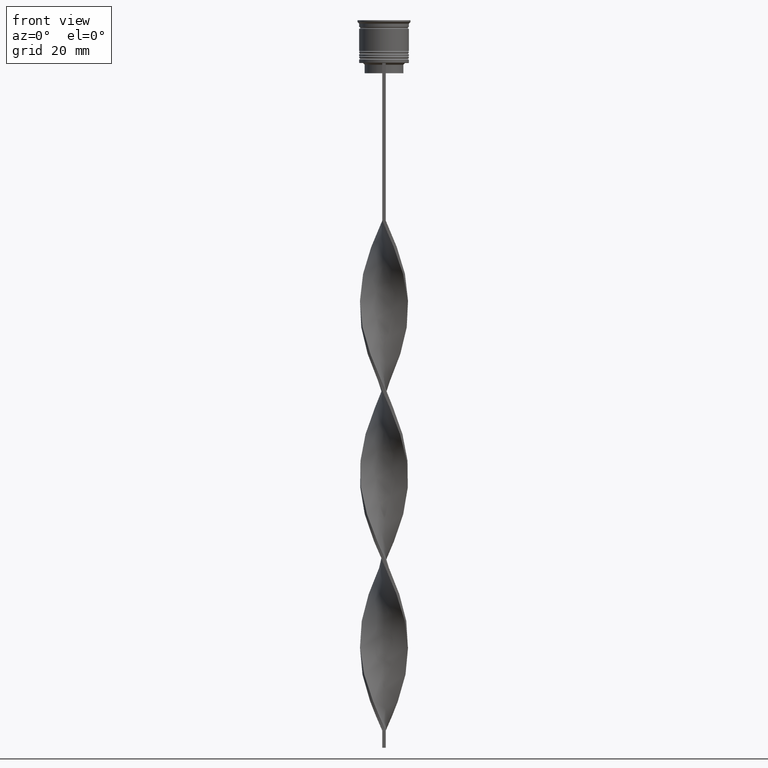
[diagram: clean part render]
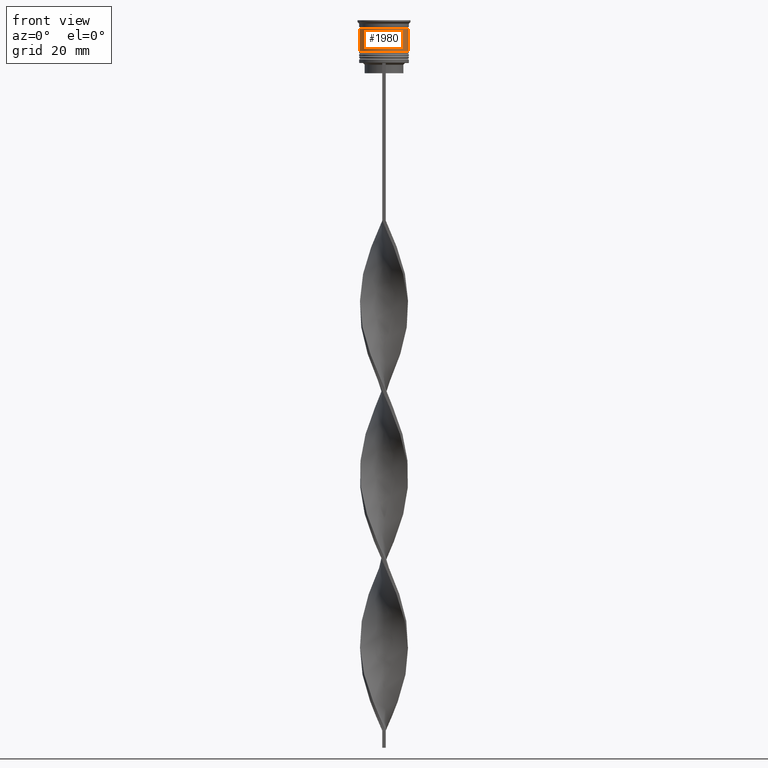
[diagram: same view with one face highlighted and labeled with its STEP entity id]
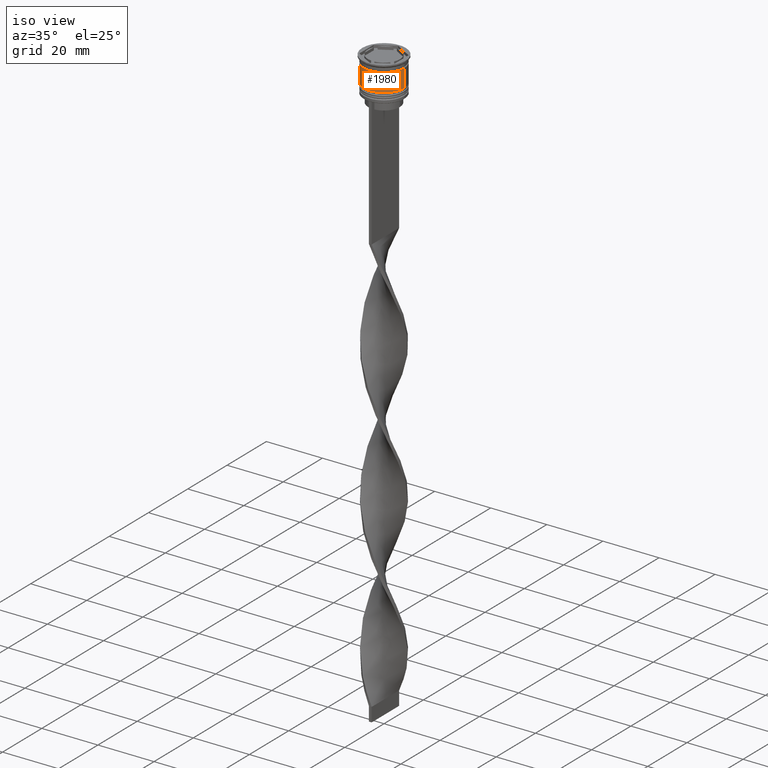
[diagram: same view with one face highlighted and labeled with its STEP entity id]
A machine part, front view. The second image highlights one B-rep face of the part: STEP entity #1980.
A second angle (iso view) of the same face is appended — the face is thin or edge-on in the first view.
In plain terms, the highlighted cylindrical surface (edge-blend (fillet) strip) has radius 7.25 mm, axis along (-0, -0, 1).
Its self-contained STEP definition (entity closure, byte-faithful):
#33 = CARTESIAN_POINT ( 'NONE',  ( 0.000000000000000000, 0.000000000000000000, 0.000000000000000000 ) ) ;
#38 = CARTESIAN_POINT ( 'NONE',  ( 7.249999999999997335, 0.000000000000000000, -2.500000000000000444 ) ) ;
#73 = CIRCLE ( 'NONE', #1728, 7.250000000000000888 ) ;
#140 = ORIENTED_EDGE ( 'NONE', *, *, #3059, .T. ) ;
#322 = DIRECTION ( 'NONE',  ( 1.000000000000000000, 0.000000000000000000, 0.000000000000000000 ) ) ;
#389 = ORIENTED_EDGE ( 'NONE', *, *, #2711, .T. ) ;
#723 = LINE ( 'NONE', #3067, #3071 ) ;
#832 = VERTEX_POINT ( 'NONE', #1933 ) ;
#984 = CARTESIAN_POINT ( 'NONE',  ( 7.249999999999999112, 0.000000000000000000, 0.000000000000000000 ) ) ;
#1032 = DIRECTION ( 'NONE',  ( -0.000000000000000000, -0.000000000000000000, 1.000000000000000000 ) ) ;
#1119 = DIRECTION ( 'NONE',  ( 1.000000000000000000, 0.000000000000000000, 0.000000000000000000 ) ) ;
#1253 = DIRECTION ( 'NONE',  ( -0.000000000000000000, -0.000000000000000000, 1.000000000000000000 ) ) ;
#1328 = LINE ( 'NONE', #984, #2709 ) ;
#1457 = CARTESIAN_POINT ( 'NONE',  ( -7.249999999999997335, 8.878689293818308102E-16, -2.500000000000000444 ) ) ;
#1499 = EDGE_LOOP ( 'NONE', ( #3107, #140, #389, #2991 ) ) ;
#1530 = EDGE_CURVE ( 'NONE', #1734, #1697, #723, .T. ) ;
#1614 = DIRECTION ( 'NONE',  ( 1.000000000000000000, 0.000000000000000000, 0.000000000000000000 ) ) ;
#1697 = VERTEX_POINT ( 'NONE', #1457 ) ;
#1728 = AXIS2_PLACEMENT_3D ( 'NONE', #3728, #1922, #1119 ) ;
#1734 = VERTEX_POINT ( 'NONE', #1977 ) ;
#1758 = CYLINDRICAL_SURFACE ( 'NONE', #3264, 7.249999999999999112 ) ;
#1922 = DIRECTION ( 'NONE',  ( -0.000000000000000000, -0.000000000000000000, 1.000000000000000000 ) ) ;
#1933 = CARTESIAN_POINT ( 'NONE',  ( 7.250000000000000888, 0.000000000000000000, -9.000000000000001776 ) ) ;
#1977 = CARTESIAN_POINT ( 'NONE',  ( -7.250000000000000888, 8.878689293818312046E-16, -9.000000000000001776 ) ) ;
#1980 = ADVANCED_FACE ( 'NONE', ( #3769 ), #1758, .T. ) ;
#2064 = DIRECTION ( 'NONE',  ( -0.000000000000000000, -0.000000000000000000, 1.000000000000000000 ) ) ;
#2219 = AXIS2_PLACEMENT_3D ( 'NONE', #3350, #1253, #1614 ) ;
#2472 = VERTEX_POINT ( 'NONE', #38 ) ;
#2678 = EDGE_CURVE ( 'NONE', #1697, #2472, #3636, .T. ) ;
#2709 = VECTOR ( 'NONE', #3055, 1000.000000000000000 ) ;
#2711 = EDGE_CURVE ( 'NONE', #832, #2472, #1328, .T. ) ;
#2991 = ORIENTED_EDGE ( 'NONE', *, *, #2678, .F. ) ;
#3055 = DIRECTION ( 'NONE',  ( -0.000000000000000000, -0.000000000000000000, 1.000000000000000000 ) ) ;
#3059 = EDGE_CURVE ( 'NONE', #1734, #832, #73, .T. ) ;
#3067 = CARTESIAN_POINT ( 'NONE',  ( -7.249999999999999112, 8.878689293818310074E-16, 0.000000000000000000 ) ) ;
#3071 = VECTOR ( 'NONE', #1032, 1000.000000000000000 ) ;
#3107 = ORIENTED_EDGE ( 'NONE', *, *, #1530, .F. ) ;
#3264 = AXIS2_PLACEMENT_3D ( 'NONE', #33, #2064, #322 ) ;
#3350 = CARTESIAN_POINT ( 'NONE',  ( 0.000000000000000000, 0.000000000000000000, -2.500000000000000444 ) ) ;
#3636 = CIRCLE ( 'NONE', #2219, 7.249999999999997335 ) ;
#3728 = CARTESIAN_POINT ( 'NONE',  ( 0.000000000000000000, 0.000000000000000000, -9.000000000000001776 ) ) ;
#3769 = FACE_OUTER_BOUND ( 'NONE', #1499, .T. ) ;